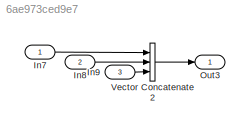
MODEL slx_6ae973ced9e7
KIND model
CONFIG AbsTol = auto
CONFIG EnableMultiTasking = on
CONFIG FixedStep = 0.1
CONFIG MaxStep = 1
CONFIG MinStep = auto
CONFIG RelTol = 1e-3
CONFIG SampleTimeConstraint = Unconstrained
CONFIG Solver = FixedStepAuto
CONFIG SolverName = FixedStepAuto
CONFIG StartTime = 0.0
CONFIG StopTime = 0
BLOCK [Inport] In7
  IconDisplay = Port number
  OutDataTypeStr = double
BLOCK [Inport] In8
  IconDisplay = Port number
  OutDataTypeStr = double
  Port = 2
  PortDimensions = 5
BLOCK [Inport] In9
  IconDisplay = Port number
  OutDataTypeStr = double
  Port = 3
  PortDimensions = 2
BLOCK [Outport] Out3
  IconDisplay = Port number
BLOCK [Concatenate] Vector Concatenate2
  NumInputs = 3
  Ports = [3, 1]
LINE In7:1 -> Vector Concatenate2:1
LINE In8:1 -> Vector Concatenate2:2
LINE In9:1 -> Vector Concatenate2:3
LINE Vector Concatenate2:1 -> Out3:1
